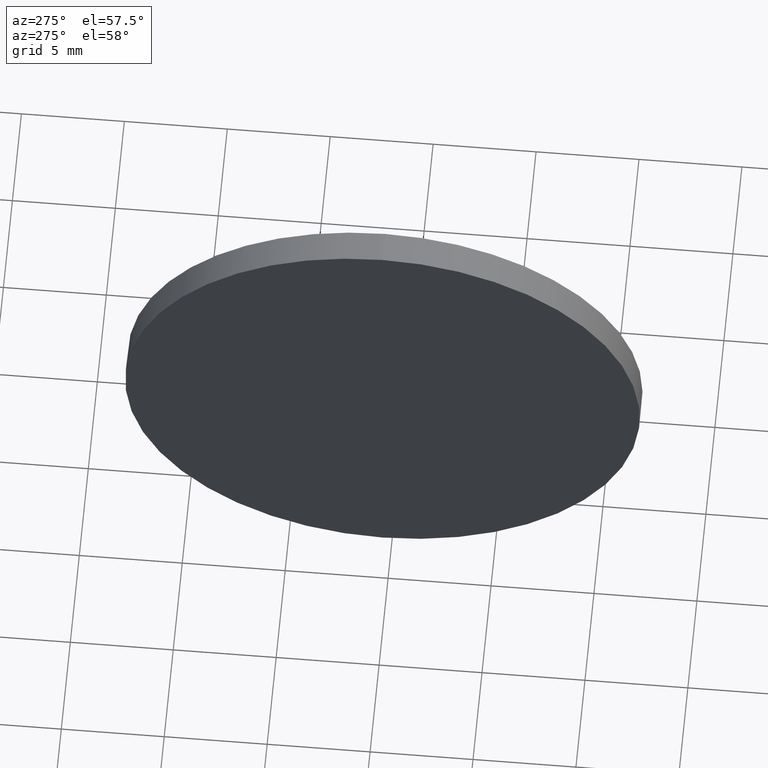
[diagram: clean part render]
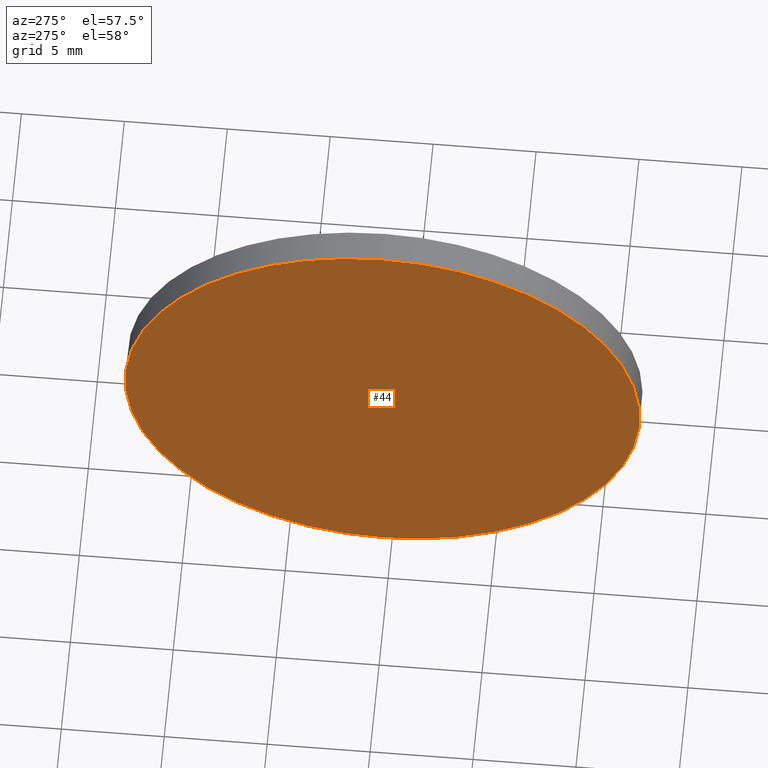
[diagram: same view with one face highlighted and labeled with its STEP entity id]
A machine part, auxiliary view. The second image highlights one B-rep face of the part: STEP entity #44.
In plain terms, the highlighted planar face has unit normal (1, 0, 0).
Its self-contained STEP definition (entity closure, byte-faithful):
#1 = DIRECTION ( 'NONE',  ( 0.0000000000000000000, 0.0000000000000000000, 1.000000000000000000 ) ) ;
#17 = CARTESIAN_POINT ( 'NONE',  ( 466.9651575666903200, 120.4458645264297700, 0.0000000000000000000 ) ) ;
#25 = EDGE_CURVE ( 'NONE', #150, #36, #95, .T. ) ;
#33 = DIRECTION ( 'NONE',  ( -1.000000000000000000, -0.0000000000000000000, -0.0000000000000000000 ) ) ;
#34 = DIRECTION ( 'NONE',  ( 1.000000000000000000, 0.0000000000000000000, 0.0000000000000000000 ) ) ;
#36 = VERTEX_POINT ( 'NONE', #38 ) ;
#37 = DIRECTION ( 'NONE',  ( 0.0000000000000000000, 0.0000000000000000000, 1.000000000000000000 ) ) ;
#38 = CARTESIAN_POINT ( 'NONE',  ( 466.9651575666903200, 120.4458645264297700, 12.50000000000001100 ) ) ;
#44 = ADVANCED_FACE ( 'NONE', ( #162 ), #160, .F. ) ;
#48 = AXIS2_PLACEMENT_3D ( 'NONE', #54, #127, #37 ) ;
#49 = EDGE_CURVE ( 'NONE', #36, #150, #97, .T. ) ;
#51 = AXIS2_PLACEMENT_3D ( 'NONE', #17, #34, #59 ) ;
#54 = CARTESIAN_POINT ( 'NONE',  ( 466.9651575666903200, 120.4458645264297700, 0.0000000000000000000 ) ) ;
#59 = DIRECTION ( 'NONE',  ( 0.0000000000000000000, 0.0000000000000000000, -1.000000000000000000 ) ) ;
#68 = ORIENTED_EDGE ( 'NONE', *, *, #25, .T. ) ;
#95 = CIRCLE ( 'NONE', #156, 12.50000000000001100 ) ;
#97 = CIRCLE ( 'NONE', #48, 12.50000000000001100 ) ;
#116 = CARTESIAN_POINT ( 'NONE',  ( 466.9651575666903200, 120.4458645264297700, 0.0000000000000000000 ) ) ;
#121 = ORIENTED_EDGE ( 'NONE', *, *, #49, .T. ) ;
#127 = DIRECTION ( 'NONE',  ( -1.000000000000000000, -0.0000000000000000000, -0.0000000000000000000 ) ) ;
#150 = VERTEX_POINT ( 'NONE', #166 ) ;
#156 = AXIS2_PLACEMENT_3D ( 'NONE', #116, #33, #1 ) ;
#160 = PLANE ( 'NONE',  #51 ) ;
#162 = FACE_OUTER_BOUND ( 'NONE', #176, .T. ) ;
#166 = CARTESIAN_POINT ( 'NONE',  ( 466.9651575666903200, 120.4458645264297700, -12.50000000000001100 ) ) ;
#176 = EDGE_LOOP ( 'NONE', ( #121, #68 ) ) ;